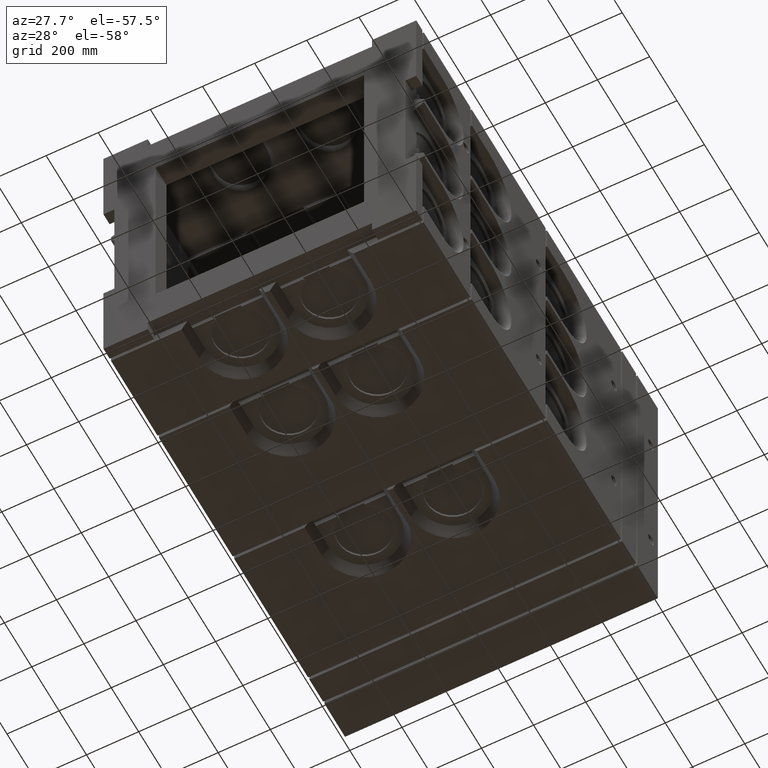
[diagram: clean part render]
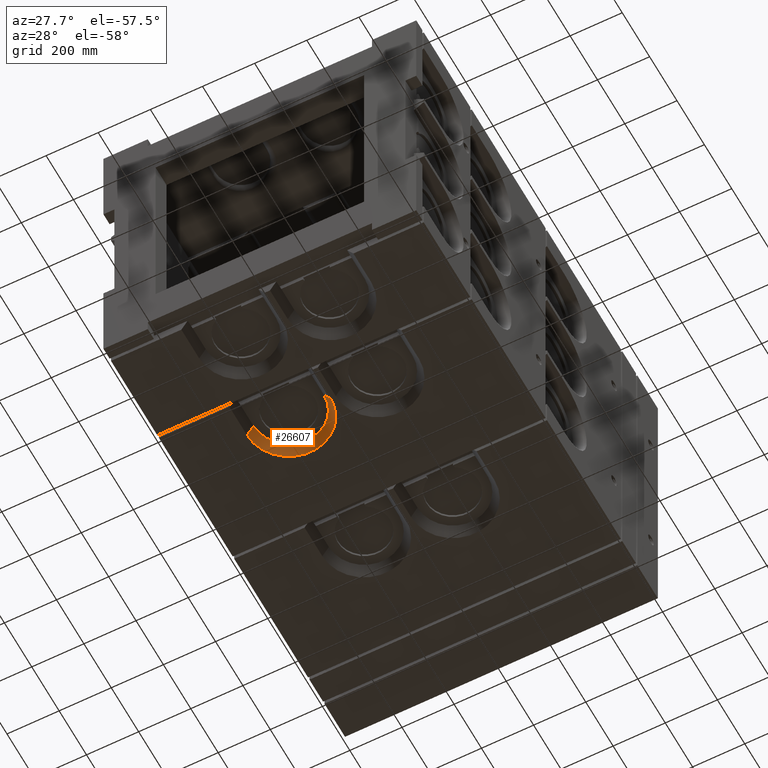
[diagram: same view with one face highlighted and labeled with its STEP entity id]
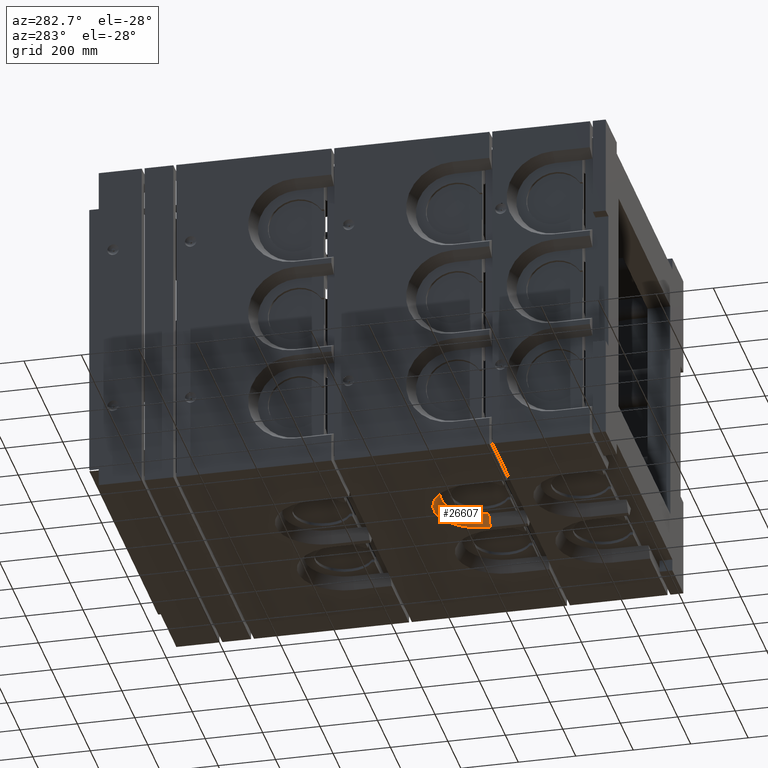
[diagram: same view with one face highlighted and labeled with its STEP entity id]
A machine part, auxiliary view. The second image highlights one B-rep face of the part: STEP entity #26607.
A second angle (auxiliary view) of the same face is appended — the face is thin or edge-on in the first view.
In plain terms, the highlighted conical surface has half-angle 32 deg.
Its self-contained STEP definition (entity closure, byte-faithful):
#221 = CIRCLE ( 'NONE', #28495, 135.0052259236268526 ) ;
#1610 = VERTEX_POINT ( 'NONE', #13516 ) ;
#2047 = CARTESIAN_POINT ( 'NONE',  ( -329.9999999999997158, 534.9999999999994316, -600.0000000000000000 ) ) ;
#6593 = DIRECTION ( 'NONE',  ( -1.000000000000000000, 0.0000000000000000000, -6.938893903907227392E-16 ) ) ;
#8433 = DIRECTION ( 'NONE',  ( 0.5299192642332064551, 5.179174879613917287E-17, -0.8480480961564250686 ) ) ;
#8571 = LINE ( 'NONE', #29201, #42942 ) ;
#9533 = VERTEX_POINT ( 'NONE', #14811 ) ;
#10806 = CARTESIAN_POINT ( 'NONE',  ( -169.9999999999997726, 534.9999999999994316, -600.0000000000000000 ) ) ;
#12656 = ORIENTED_EDGE ( 'NONE', *, *, #34591, .T. ) ;
#13516 = CARTESIAN_POINT ( 'NONE',  ( -9.999999999999676703, 534.9999999999994316, -599.9999999999998863 ) ) ;
#14300 = VERTEX_POINT ( 'NONE', #2047 ) ;
#14811 = CARTESIAN_POINT ( 'NONE',  ( -305.0052259236265400, 534.9999999999994316, -560.0000000000000000 ) ) ;
#16294 = CARTESIAN_POINT ( 'NONE',  ( -169.9999999999997726, 534.9999999999994316, -600.0000000000000000 ) ) ;
#18792 = ORIENTED_EDGE ( 'NONE', *, *, #43755, .T. ) ;
#18955 = DIRECTION ( 'NONE',  ( -0.5299192642332055669, -1.246564530262614220E-16, -0.8480480961564255127 ) ) ;
#20837 = DIRECTION ( 'NONE',  ( 4.617429402512937596E-16, -1.665334536937734811E-16, -1.000000000000000000 ) ) ;
#23954 = CARTESIAN_POINT ( 'NONE',  ( -34.99477407637285609, 534.9999999999995453, -559.9999999999998863 ) ) ;
#24201 = LINE ( 'NONE', #26260, #41958 ) ;
#26260 = CARTESIAN_POINT ( 'NONE',  ( -9.999999999999676703, 534.9999999999995453, -599.9999999999998863 ) ) ;
#26607 = ADVANCED_FACE ( 'NONE', ( #40985 ), #44809, .F. ) ;
#26722 = DIRECTION ( 'NONE',  ( 4.617429402512937596E-16, -1.665334536937734811E-16, -1.000000000000000000 ) ) ;
#27977 = CARTESIAN_POINT ( 'NONE',  ( -169.9999999999997726, 534.9999999999994316, -559.9999999999998863 ) ) ;
#28495 = AXIS2_PLACEMENT_3D ( 'NONE', #27977, #20837, #35456 ) ;
#29201 = CARTESIAN_POINT ( 'NONE',  ( -329.9999999999997158, 534.9999999999994316, -600.0000000000000000 ) ) ;
#29753 = ORIENTED_EDGE ( 'NONE', *, *, #34553, .F. ) ;
#30518 = AXIS2_PLACEMENT_3D ( 'NONE', #16294, #26722, #40969 ) ;
#34553 = EDGE_CURVE ( 'NONE', #42354, #1610, #24201, .T. ) ;
#34591 = EDGE_CURVE ( 'NONE', #14300, #1610, #42491, .T. ) ;
#35182 = EDGE_LOOP ( 'NONE', ( #12656, #29753, #44773, #18792 ) ) ;
#35184 = DIRECTION ( 'NONE',  ( 4.617429402512937596E-16, -1.665334536937734811E-16, -1.000000000000000000 ) ) ;
#35456 = DIRECTION ( 'NONE',  ( -1.000000000000000000, 0.0000000000000000000, -8.223555918148052984E-16 ) ) ;
#35551 = EDGE_CURVE ( 'NONE', #9533, #42354, #221, .T. ) ;
#40969 = DIRECTION ( 'NONE',  ( -1.000000000000000000, 0.0000000000000000000, -6.938893903907227392E-16 ) ) ;
#40985 = FACE_OUTER_BOUND ( 'NONE', #35182, .T. ) ;
#41958 = VECTOR ( 'NONE', #8433, 1000.000000000000114 ) ;
#42354 = VERTEX_POINT ( 'NONE', #23954 ) ;
#42491 = CIRCLE ( 'NONE', #30518, 160.0000000000000284 ) ;
#42942 = VECTOR ( 'NONE', #18955, 1000.000000000000227 ) ;
#43755 = EDGE_CURVE ( 'NONE', #9533, #14300, #8571, .T. ) ;
#44403 = AXIS2_PLACEMENT_3D ( 'NONE', #10806, #35184, #6593 ) ;
#44773 = ORIENTED_EDGE ( 'NONE', *, *, #35551, .F. ) ;
#44809 = CONICAL_SURFACE ( 'NONE', #44403, 160.0000000000000284, 0.5585053606381866764 ) ;